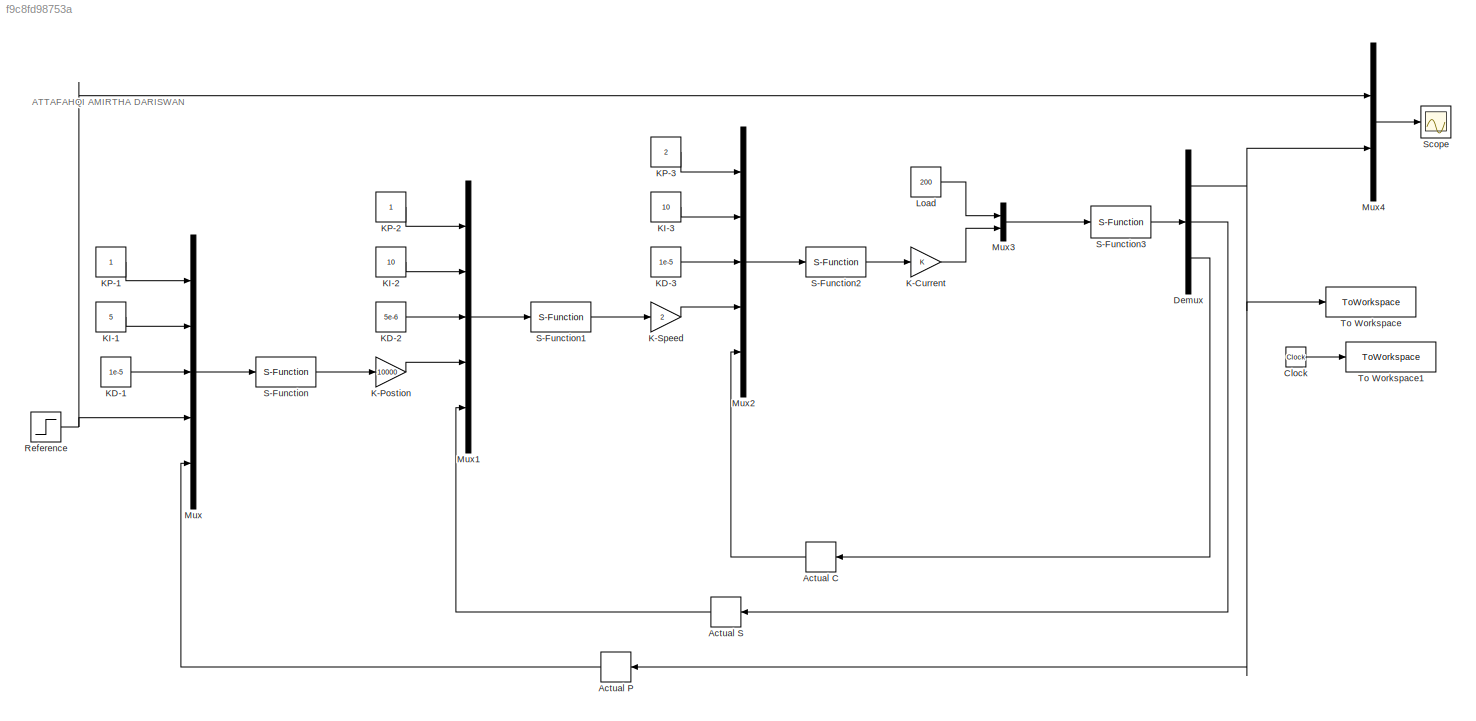
MODEL slx_f9c8fd98753a
KIND model
CONFIG AbsTol = auto
CONFIG EnableMultiTasking = off
CONFIG FixedStep = auto
CONFIG MaxStep = auto
CONFIG MinStep = auto
CONFIG RelTol = 1e-3
CONFIG SampleTimeConstraint = Unconstrained
CONFIG SolverName = VariableStepAuto
CONFIG StartTime = 0.0
CONFIG StopTime = 10
BLOCK [Memory] Actual C
BLOCK [Memory] Actual P
BLOCK [Memory] Actual S
BLOCK [Clock] Clock
BLOCK [Demux] Demux
  Outputs = 3
  Ports = [1, 3]
BLOCK [Gain] K-Current
BLOCK [Gain] K-Postion
  Gain = 10000
BLOCK [Gain] K-Speed
  Gain = 2
BLOCK [Constant] KD-1
  Value = 1e-5
BLOCK [Constant] KD-2
  Value = 5e-6
BLOCK [Constant] KD-3
  Value = 1e-5
BLOCK [Constant] KI-1
  Value = 5
BLOCK [Constant] KI-2
  Value = 10
BLOCK [Constant] KI-3
  Value = 10
BLOCK [Constant] KP-1
BLOCK [Constant] KP-2
BLOCK [Constant] KP-3
  Value = 2
BLOCK [Constant] Load
  Value = 200
BLOCK [Mux] Mux
  DisplayOption = bar
  Inputs = 5
  Ports = [5, 1]
BLOCK [Mux] Mux1
  DisplayOption = bar
  Inputs = 5
  Ports = [5, 1]
BLOCK [Mux] Mux2
  DisplayOption = bar
  Inputs = 5
  Ports = [5, 1]
BLOCK [Mux] Mux3
  DisplayOption = bar
  Inputs = 2
  Ports = [2, 1]
BLOCK [Mux] Mux4
  DisplayOption = bar
  Inputs = 2
  Ports = [2, 1]
BLOCK [Step] Reference
  After = 5
  SampleTime = 0
BLOCK [S-Function] S-Function
  EnableBusSupport = off
  FunctionName = PID
  Ports = [1, 1]
  SFcnIsStateOwnerBlock = off
  SFunctionDeploymentMode = off
BLOCK [S-Function] S-Function1
  EnableBusSupport = off
  FunctionName = PID
  Ports = [1, 1]
  SFcnIsStateOwnerBlock = off
  SFunctionDeploymentMode = off
BLOCK [S-Function] S-Function2
  EnableBusSupport = off
  FunctionName = PID
  Ports = [1, 1]
  SFcnIsStateOwnerBlock = off
  SFunctionDeploymentMode = off
BLOCK [S-Function] S-Function3
  EnableBusSupport = off
  FunctionName = Motor
  Ports = [1, 1]
  SFcnIsStateOwnerBlock = off
  SFunctionDeploymentMode = off
BLOCK [Scope] Scope
  Floating = off
  NumInputPorts = 1
  Ports = [1]
  ScopeSpecificationString = Simulink.scopes.TimeScopeBlockCfg('CurrentConfiguration', extmgr.ConfigurationSet(extmgr.Configuration('Core','General UI',true),extmgr.Configuration('Core','Source UI',true),extmgr.Configuration('Sources','WiredSimulink',true),extmgr.Configuration('Visuals','Time Domain',true,'SerializedDisplays',{struct('MinYLimReal','-0.6552','MaxYLimReal','5.79007','YLabelReal','','MinYLimMag','0.00000','MaxYL...<+1434ch>
BLOCK [ToWorkspace] To Workspace
  FixptAsFi = on
  MaxDataPoints = inf
  Ports = [1]
  SampleTime = -1
  VariableName = y
BLOCK [ToWorkspace] To Workspace1
  FixptAsFi = on
  MaxDataPoints = inf
  Ports = [1]
  SampleTime = -1
  SaveFormat = Timeseries
  VariableName = t
ANNOTATION (root): ATTAFAHQI AMIRTHA DARISWAN
LINE Actual C:1 -> Mux2:5
LINE Actual P:1 -> Mux:5
LINE Actual S:1 -> Mux1:5
LINE Clock:1 -> To Workspace1:1
NET Demux:1 -> Actual P:1, Mux4:2, To Workspace:1
LINE Demux:2 -> Actual S:1
LINE Demux:3 -> Actual C:1
LINE K-Current:1 -> Mux3:2
LINE K-Postion:1 -> Mux1:4
LINE K-Speed:1 -> Mux2:4
LINE KD-1:1 -> Mux:3
LINE KD-2:1 -> Mux1:3
LINE KD-3:1 -> Mux2:3
LINE KI-1:1 -> Mux:2
LINE KI-2:1 -> Mux1:2
LINE KI-3:1 -> Mux2:2
LINE KP-1:1 -> Mux:1
LINE KP-2:1 -> Mux1:1
LINE KP-3:1 -> Mux2:1
LINE Load:1 -> Mux3:1
LINE Mux1:1 -> S-Function1:1
LINE Mux2:1 -> S-Function2:1
LINE Mux3:1 -> S-Function3:1
LINE Mux4:1 -> Scope:1
LINE Mux:1 -> S-Function:1
NET Reference:1 -> Mux4:1, Mux:4
LINE S-Function1:1 -> K-Speed:1
LINE S-Function2:1 -> K-Current:1
LINE S-Function3:1 -> Demux:1
LINE S-Function:1 -> K-Postion:1
note: NET lines group one-source signal fan-out (src -> all destinations, sorted); 1:1 wires keep LINE
